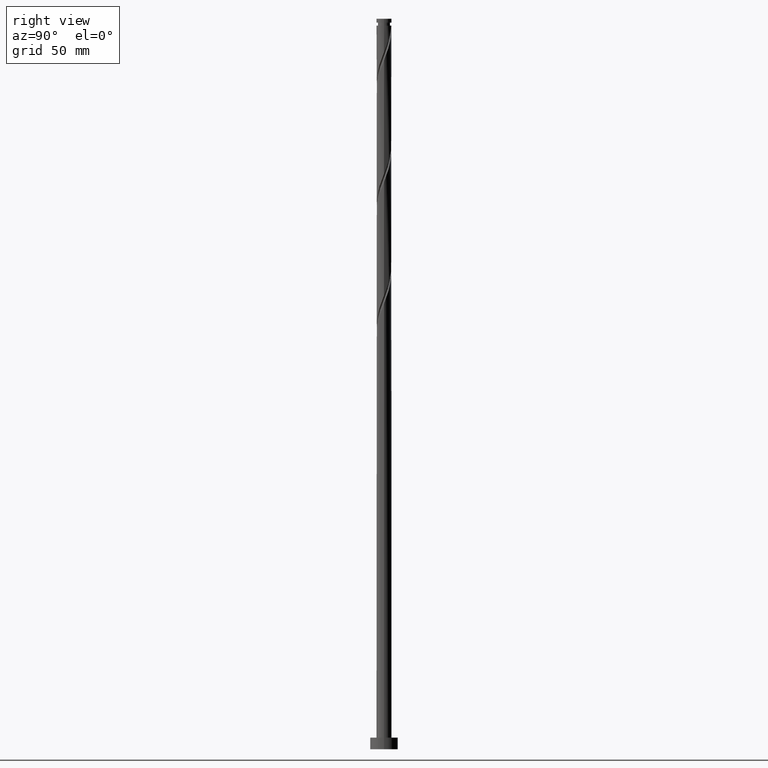
[diagram: clean part render]
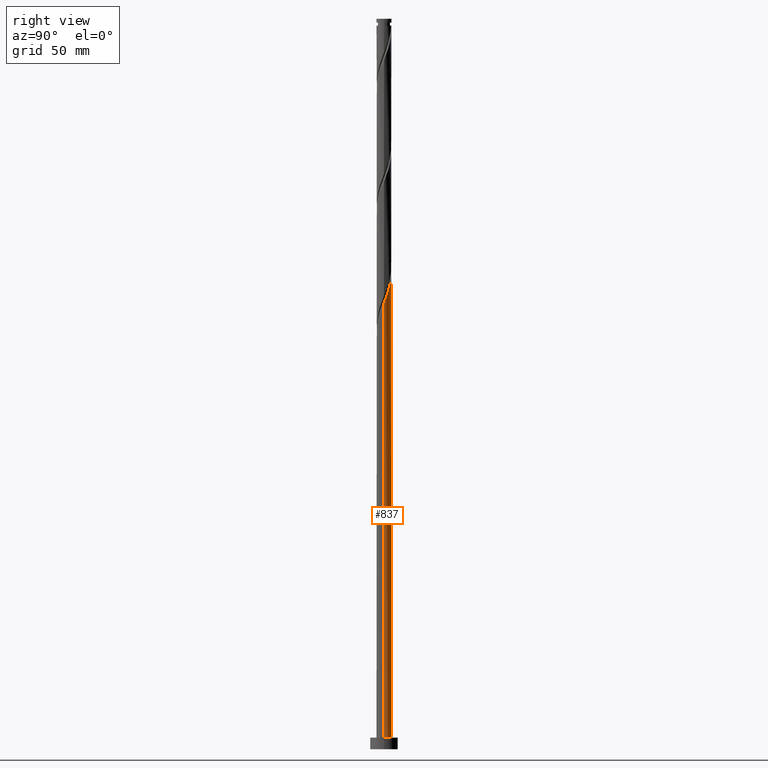
[diagram: same view with one face highlighted and labeled with its STEP entity id]
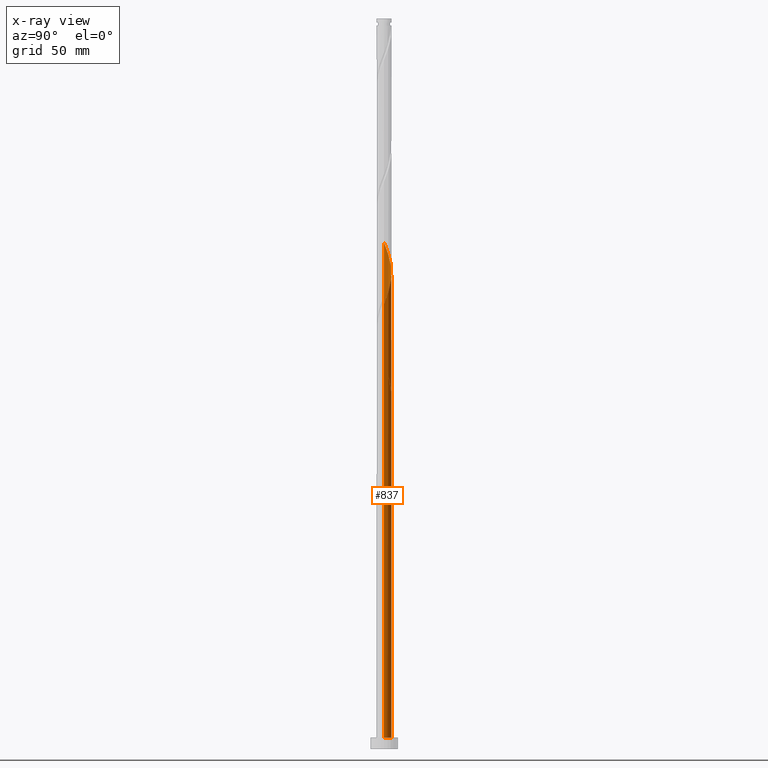
[diagram: x-ray of the same camera — body ghosted, the highlighted face saturated]
A machine part, right view. The second image highlights one B-rep face of the part: STEP entity #837.
The next image is the same camera in x-ray: the body ghosted, the highlighted face saturated — about 0% of this face is hidden behind the body in this view.
In plain terms, the highlighted cylindrical surface (edge-blend (fillet) strip) has radius 3.25 mm, axis along (-0, -0, -1).
Its self-contained STEP definition (entity closure, byte-faithful):
#42 = DIRECTION ( 'NONE',  ( -1.000000000000000000, 0.000000000000000000, 0.000000000000000000 ) ) ;
#47 = CARTESIAN_POINT ( 'NONE',  ( 0.7992254509778199401, 3.150196609500639955, 203.2905349265506914 ) ) ;
#53 = LINE ( 'NONE', #650, #691 ) ;
#57 = CARTESIAN_POINT ( 'NONE',  ( -3.249058997255960257, 0.07820250859228415619, 218.2905349265507198 ) ) ;
#66 = CARTESIAN_POINT ( 'NONE',  ( -3.250000000000000888, -6.731523858208234460E-15, 169.3400520044567941 ) ) ;
#67 = ORIENTED_EDGE ( 'NONE', *, *, #1355, .F. ) ;
#121 = ORIENTED_EDGE ( 'NONE', *, *, #1755, .T. ) ;
#152 = CARTESIAN_POINT ( 'NONE',  ( -0.07820250859228344842, 3.249058997255956260, 156.4155349265507482 ) ) ;
#162 = CARTESIAN_POINT ( 'NONE',  ( -3.250000000000004441, -1.559743332999460153E-15, 218.4910178486446739 ) ) ;
#166 = CARTESIAN_POINT ( 'NONE',  ( 3.185000000000003162, 0.6467418341193053033, 193.9155349265507766 ) ) ;
#203 = CARTESIAN_POINT ( 'NONE',  ( 3.250000000000004441, 1.111970127353682058E-15, 192.2410178486446455 ) ) ;
#214 = CARTESIAN_POINT ( 'NONE',  ( 2.961231803342264879, 1.339255840709439704, 195.7905349265506914 ) ) ;
#266 = DIRECTION ( 'NONE',  ( 1.000000000000000000, 0.000000000000000000, 0.000000000000000000 ) ) ;
#281 = CARTESIAN_POINT ( 'NONE',  ( -2.810333910491133125, 1.672906533717719357, 164.8530349265507198 ) ) ;
#290 = EDGE_CURVE ( 'NONE', #395, #1917, #583, .T. ) ;
#316 = CARTESIAN_POINT ( 'NONE',  ( -1.339255840709440593, 2.961231803342264879, 208.9155349265507198 ) ) ;
#348 = VERTEX_POINT ( 'NONE', #203 ) ;
#352 = CARTESIAN_POINT ( 'NONE',  ( -1.672906533717721356, 2.810333910491137122, 209.8530349265507766 ) ) ;
#377 = EDGE_CURVE ( 'NONE', #348, #582, #607, .T. ) ;
#395 = VERTEX_POINT ( 'NONE', #1348 ) ;
#441 = CARTESIAN_POINT ( 'NONE',  ( -1.480171891976476806, 2.893370209669474225, 160.1655349265507482 ) ) ;
#446 = CARTESIAN_POINT ( 'NONE',  ( -0.6467418341193051923, 3.185000000000003606, 154.5405349265506914 ) ) ;
#452 = CARTESIAN_POINT ( 'NONE',  ( -3.185000000000000497, 0.6467418341193057474, 167.6655349265507198 ) ) ;
#455 = CARTESIAN_POINT ( 'NONE',  ( -2.491458145863657769, 2.086896333651878432, 160.1655349265507482 ) ) ;
#456 = CARTESIAN_POINT ( 'NONE',  ( -3.250000000000004441, -1.559743332999460153E-15, 218.4910178486446739 ) ) ;
#479 = CARTESIAN_POINT ( 'NONE',  ( -0.6467418341193051923, 3.185000000000003606, 154.5405349265506914 ) ) ;
#496 = CARTESIAN_POINT ( 'NONE',  ( 2.588975079037777682, 1.964613967201029432, 197.6655349265506629 ) ) ;
#514 = DIRECTION ( 'NONE',  ( -0.000000000000000000, -0.000000000000000000, -1.000000000000000000 ) ) ;
#555 = ORIENTED_EDGE ( 'NONE', *, *, #919, .T. ) ;
#578 = CARTESIAN_POINT ( 'NONE',  ( -3.112129696193387307, 1.005605147701159385, 166.7280349265507198 ) ) ;
#582 = VERTEX_POINT ( 'NONE', #162 ) ;
#583 = LINE ( 'NONE', #1615, #1902 ) ;
#588 = CARTESIAN_POINT ( 'NONE',  ( -2.961231803342261326, 1.339255840709439482, 165.7905349265507198 ) ) ;
#606 = CARTESIAN_POINT ( 'NONE',  ( -3.250000000000000444, 0.000000000000000000, 5.000000000000000000 ) ) ;
#607 =( BOUNDED_CURVE ( )  B_SPLINE_CURVE ( 2, ( #1076, #1676, #166, #1365, #214, #785, #496, #1043, #1377, #773, #1662, #921, #47, #644, #897, #1088, #1063, #1691, #316, #352, #941, #1793, #1530, #798, #1389, #1486, #1209, #1801, #57, #1218, #456 ),
 .UNSPECIFIED., .F., .T. ) 
 B_SPLINE_CURVE_WITH_KNOTS ( ( 3, 2, 2, 2, 2, 2, 2, 2, 2, 2, 2, 2, 2, 2, 2, 3 ),
 ( 0.1795303401299218060, 0.1875000000000000000, 0.1964285714285713969, 0.2053571428571429047, 0.2142857142857143016, 0.2232142857142856984, 0.2321428571428570953, 0.2410714285714286031, 0.2500000000000000000, 0.2589285714285713969, 0.2678571428571429047, 0.2767857142857143016, 0.2857142857142856984, 0.2946428571428570953, 0.3035714285714286031, 0.3045303401299219725 ),
 .UNSPECIFIED. ) 
 CURVE ( )  GEOMETRIC_REPRESENTATION_ITEM ( )  RATIONAL_B_SPLINE_CURVE ( ( 0.9079949616362172904, 0.9039886423360798950, 0.9090909090909469192, 0.9033747362666216807, 0.9090909090909469192, 0.9033747362666216807, 0.9090909090909469192, 0.9033747362666216807, 0.9090909090909469192, 0.9033747362666216807, 0.9090909090909469192, 0.9033747362666216807, 0.9090909090909469192, 0.9033747362666216807, 0.9090909090909469192, 0.9033747362666216807, 0.9090909090909469192, 0.9033747362666216807, 0.9090909090909469192, 0.9033747362666216807, 0.9090909090909469192, 0.9033747362666216807, 0.9090909090909469192, 0.9033747362666216807, 0.9090909090909469192, 0.9033747362666216807, 0.9090909090909469192, 0.9033747362666216807, 0.9090909090909469192, 0.9084770030214888159, 0.9079949616362170683 ) ) 
 REPRESENTATION_ITEM ( '' )  );
#608 = CARTESIAN_POINT ( 'NONE',  ( -3.060145528295977524, 1.154167364233618764, 162.9780349265507198 ) ) ;
#640 = CARTESIAN_POINT ( 'NONE',  ( 3.250000000000000444, 3.980102097228898231E-16, 5.000000000000000000 ) ) ;
#644 = CARTESIAN_POINT ( 'NONE',  ( 0.4442835377220207826, 3.240247690705303718, 204.2280349265507482 ) ) ;
#650 = CARTESIAN_POINT ( 'NONE',  ( -3.250000000000000444, 0.000000000000000000, 315.0000000000000000 ) ) ;
#663 =( BOUNDED_CURVE ( )  B_SPLINE_CURVE ( 2, ( #446, #1160, #1637, #1042, #1799, #883, #455, #1034, #1023, #608, #1455, #726, #1466, #1048, #1922 ),
 .UNSPECIFIED., .F., .T. ) 
 B_SPLINE_CURVE_WITH_KNOTS ( ( 3, 2, 2, 2, 2, 2, 2, 3 ),
 ( 0.000000000000000000, 0.008928571428571396851, 0.01785714285714290472, 0.02678571428571430504, 0.03571428571428569843, 0.04464285714285709528, 0.05357142857142861009, 0.05453034012992192398 ),
 .UNSPECIFIED. ) 
 CURVE ( )  GEOMETRIC_REPRESENTATION_ITEM ( )  RATIONAL_B_SPLINE_CURVE ( ( 0.9090909090909469192, 0.9033747362666216807, 0.9090909090909469192, 0.9033747362666216807, 0.9090909090909469192, 0.9033747362666216807, 0.9090909090909469192, 0.9033747362666216807, 0.9090909090909469192, 0.9033747362666216807, 0.9090909090909469192, 0.9033747362666216807, 0.9090909090909469192, 0.9084770030214887049, 0.9079949616362170683 ) ) 
 REPRESENTATION_ITEM ( '' )  );
#691 = VECTOR ( 'NONE', #1235, 1000.000000000000000 ) ;
#717 =( BOUNDED_CURVE ( )  B_SPLINE_CURVE ( 2, ( #1788, #1302, #452, #578, #588, #281, #1040, #1766, #1775, #1452, #441, #1472, #1032, #1599, #152, #1633, #1177 ),
 .UNSPECIFIED., .F., .T. ) 
 B_SPLINE_CURVE_WITH_KNOTS ( ( 3, 2, 2, 2, 2, 2, 2, 2, 3 ),
 ( 0.9295303401299219725, 0.9375000000000000000, 0.9464285714285713969, 0.9553571428571429047, 0.9642857142857143016, 0.9732142857142856984, 0.9821428571428570953, 0.9910714285714286031, 1.000000000000000000 ),
 .UNSPECIFIED. ) 
 CURVE ( )  GEOMETRIC_REPRESENTATION_ITEM ( )  RATIONAL_B_SPLINE_CURVE ( ( 0.9079949616362118503, 0.9039886423360746770, 0.9090909090909415902, 0.9033747362666164626, 0.9090909090909415902, 0.9033747362666164626, 0.9090909090909415902, 0.9033747362666164626, 0.9090909090909415902, 0.9033747362666164626, 0.9090909090909415902, 0.9033747362666164626, 0.9090909090909415902, 0.9033747362666164626, 0.9090909090909415902, 0.9033747362666164626, 0.9090909090909415902 ) ) 
 REPRESENTATION_ITEM ( '' )  );
#726 = CARTESIAN_POINT ( 'NONE',  ( -3.240247690705304162, 0.4442835377220201720, 164.8530349265507482 ) ) ;
#772 = VERTEX_POINT ( 'NONE', #479 ) ;
#773 = CARTESIAN_POINT ( 'NONE',  ( 1.806176419719340842, 2.726594891042978475, 200.4780349265507198 ) ) ;
#785 = CARTESIAN_POINT ( 'NONE',  ( 2.810333910491137566, 1.672906533717720690, 196.7280349265507766 ) ) ;
#798 = CARTESIAN_POINT ( 'NONE',  ( -2.726594891042978919, 1.806176419719340398, 213.6030349265507198 ) ) ;
#837 = ADVANCED_FACE ( 'NONE', ( #1372 ), #1699, .T. ) ;
#850 = CARTESIAN_POINT ( 'NONE',  ( 0.6467418341193063025, 3.185000000000000053, 154.5405349265506914 ) ) ;
#865 = EDGE_LOOP ( 'NONE', ( #1136, #555, #121, #1589, #67, #1866, #1504, #1170 ) ) ;
#883 = CARTESIAN_POINT ( 'NONE',  ( -2.256321400684338840, 2.367616247584416467, 159.2280349265507482 ) ) ;
#886 = EDGE_CURVE ( 'NONE', #582, #1572, #53, .T. ) ;
#897 = CARTESIAN_POINT ( 'NONE',  ( 0.07820250859228491946, 3.249058997255960257, 205.1655349265506914 ) ) ;
#899 = CARTESIAN_POINT ( 'NONE',  ( 0.000000000000000000, 0.000000000000000000, 154.5405349265506914 ) ) ;
#903 = AXIS2_PLACEMENT_3D ( 'NONE', #1384, #514, #42 ) ;
#919 = EDGE_CURVE ( 'NONE', #348, #1617, #1682, .T. ) ;
#921 = CARTESIAN_POINT ( 'NONE',  ( 1.154167364233619653, 3.060145528295977524, 202.3530349265506914 ) ) ;
#932 = DIRECTION ( 'NONE',  ( -0.000000000000000000, -0.000000000000000000, -1.000000000000000000 ) ) ;
#941 = CARTESIAN_POINT ( 'NONE',  ( -1.964613967201029432, 2.588975079037776794, 210.7905349265506914 ) ) ;
#999 = CIRCLE ( 'NONE', #1560, 3.250000000000000444 ) ;
#1023 = CARTESIAN_POINT ( 'NONE',  ( -2.893370209669478221, 1.480171891976479248, 162.0405349265507482 ) ) ;
#1028 = CIRCLE ( 'NONE', #1904, 3.250000000000000444 ) ;
#1032 = CARTESIAN_POINT ( 'NONE',  ( -0.7992254509778180527, 3.150196609500638179, 158.2905349265507198 ) ) ;
#1034 = CARTESIAN_POINT ( 'NONE',  ( -2.726594891042978919, 1.806176419719340398, 161.1030349265506914 ) ) ;
#1040 = CARTESIAN_POINT ( 'NONE',  ( -2.588975079037772797, 1.964613967201028100, 163.9155349265506061 ) ) ;
#1042 = CARTESIAN_POINT ( 'NONE',  ( -1.672906533717721356, 2.810333910491137122, 157.3530349265507198 ) ) ;
#1043 = CARTESIAN_POINT ( 'NONE',  ( 2.367616247584416911, 2.256321400684337508, 198.6030349265508050 ) ) ;
#1048 = CARTESIAN_POINT ( 'NONE',  ( -3.250000000000004885, 0.03910691579077399394, 165.8906551604195272 ) ) ;
#1053 = CARTESIAN_POINT ( 'NONE',  ( 3.250000000000000444, 3.980102097228898231E-16, 315.0000000000000000 ) ) ;
#1063 = CARTESIAN_POINT ( 'NONE',  ( -0.6467418341193050813, 3.185000000000003162, 207.0405349265506629 ) ) ;
#1076 = CARTESIAN_POINT ( 'NONE',  ( 3.250000000000004441, 1.111970127353682058E-15, 192.2410178486446739 ) ) ;
#1088 = CARTESIAN_POINT ( 'NONE',  ( -0.2878785205374510547, 3.257870303806616352, 206.1030349265507198 ) ) ;
#1136 = ORIENTED_EDGE ( 'NONE', *, *, #377, .F. ) ;
#1141 = EDGE_CURVE ( 'NONE', #772, #1279, #1028, .T. ) ;
#1160 = CARTESIAN_POINT ( 'NONE',  ( -1.005605147701160051, 3.112129696193391748, 155.4780349265507198 ) ) ;
#1170 = ORIENTED_EDGE ( 'NONE', *, *, #886, .F. ) ;
#1177 = CARTESIAN_POINT ( 'NONE',  ( 0.6467418341193063025, 3.185000000000000053, 154.5405349265506914 ) ) ;
#1209 = CARTESIAN_POINT ( 'NONE',  ( -3.150196609500640399, 0.7992254509778191629, 216.4155349265506345 ) ) ;
#1218 = CARTESIAN_POINT ( 'NONE',  ( -3.250000000000004885, 0.03910691579077203717, 218.3906551604195840 ) ) ;
#1235 = DIRECTION ( 'NONE',  ( -0.000000000000000000, -0.000000000000000000, -1.000000000000000000 ) ) ;
#1279 = VERTEX_POINT ( 'NONE', #850 ) ;
#1293 = DIRECTION ( 'NONE',  ( 0.000000000000000000, 0.000000000000000000, 1.000000000000000000 ) ) ;
#1302 = CARTESIAN_POINT ( 'NONE',  ( -3.250000000000002220, 0.3266372899592421275, 168.5017809254932217 ) ) ;
#1348 = CARTESIAN_POINT ( 'NONE',  ( -3.250000000000004441, -1.559743332999460153E-15, 165.9910178486446171 ) ) ;
#1355 = EDGE_CURVE ( 'NONE', #772, #395, #663, .T. ) ;
#1365 = CARTESIAN_POINT ( 'NONE',  ( 3.112129696193391748, 1.005605147701159607, 194.8530349265507198 ) ) ;
#1372 = FACE_OUTER_BOUND ( 'NONE', #865, .T. ) ;
#1377 = CARTESIAN_POINT ( 'NONE',  ( 2.086896333651878432, 2.491458145863658213, 199.5405349265507198 ) ) ;
#1384 = CARTESIAN_POINT ( 'NONE',  ( 0.000000000000000000, 0.000000000000000000, 315.0000000000000000 ) ) ;
#1389 = CARTESIAN_POINT ( 'NONE',  ( -2.893370209669478221, 1.480171891976479248, 214.5405349265506629 ) ) ;
#1403 = VECTOR ( 'NONE', #1656, 1000.000000000000000 ) ;
#1452 = CARTESIAN_POINT ( 'NONE',  ( -1.806176419719337733, 2.726594891042974922, 161.1030349265507198 ) ) ;
#1455 = CARTESIAN_POINT ( 'NONE',  ( -3.150196609500640399, 0.7992254509778191629, 163.9155349265507198 ) ) ;
#1466 = CARTESIAN_POINT ( 'NONE',  ( -3.249058997255960257, 0.07820250859228415619, 165.7905349265506914 ) ) ;
#1472 = CARTESIAN_POINT ( 'NONE',  ( -1.154167364233616322, 3.060145528295973971, 159.2280349265506914 ) ) ;
#1486 = CARTESIAN_POINT ( 'NONE',  ( -3.060145528295977524, 1.154167364233618764, 215.4780349265507482 ) ) ;
#1487 = DIRECTION ( 'NONE',  ( 0.000000000000000000, -0.000000000000000000, -1.000000000000000000 ) ) ;
#1496 = DIRECTION ( 'NONE',  ( -1.000000000000000000, 0.000000000000000000, 0.000000000000000000 ) ) ;
#1504 = ORIENTED_EDGE ( 'NONE', *, *, #1897, .F. ) ;
#1530 = CARTESIAN_POINT ( 'NONE',  ( -2.491458145863657769, 2.086896333651878432, 212.6655349265507482 ) ) ;
#1559 = CARTESIAN_POINT ( 'NONE',  ( 0.000000000000000000, 0.000000000000000000, 5.000000000000000000 ) ) ;
#1560 = AXIS2_PLACEMENT_3D ( 'NONE', #1559, #1293, #266 ) ;
#1572 = VERTEX_POINT ( 'NONE', #66 ) ;
#1589 = ORIENTED_EDGE ( 'NONE', *, *, #290, .F. ) ;
#1599 = CARTESIAN_POINT ( 'NONE',  ( -0.4442835377220189508, 3.240247690705299721, 157.3530349265506914 ) ) ;
#1615 = CARTESIAN_POINT ( 'NONE',  ( -3.250000000000000444, 0.000000000000000000, 315.0000000000000000 ) ) ;
#1617 = VERTEX_POINT ( 'NONE', #640 ) ;
#1633 = CARTESIAN_POINT ( 'NONE',  ( 0.2878785205374518874, 3.257870303806612799, 155.4780349265506914 ) ) ;
#1637 = CARTESIAN_POINT ( 'NONE',  ( -1.339255840709440593, 2.961231803342264879, 156.4155349265507198 ) ) ;
#1656 = DIRECTION ( 'NONE',  ( -0.000000000000000000, -0.000000000000000000, -1.000000000000000000 ) ) ;
#1662 = CARTESIAN_POINT ( 'NONE',  ( 1.480171891976479914, 2.893370209669477777, 201.4155349265506914 ) ) ;
#1676 = CARTESIAN_POINT ( 'NONE',  ( 3.250000000000007105, 0.3266372899592344670, 193.0792889276081610 ) ) ;
#1682 = LINE ( 'NONE', #1053, #1403 ) ;
#1691 = CARTESIAN_POINT ( 'NONE',  ( -1.005605147701160051, 3.112129696193391748, 207.9780349265506345 ) ) ;
#1699 = CYLINDRICAL_SURFACE ( 'NONE', #903, 3.250000000000000444 ) ;
#1755 = EDGE_CURVE ( 'NONE', #1617, #1917, #999, .T. ) ;
#1766 = CARTESIAN_POINT ( 'NONE',  ( -2.367616247584412470, 2.256321400684335732, 162.9780349265507198 ) ) ;
#1775 = CARTESIAN_POINT ( 'NONE',  ( -2.086896333651875324, 2.491458145863655549, 162.0405349265506914 ) ) ;
#1788 = CARTESIAN_POINT ( 'NONE',  ( -3.250000000000001332, -6.731523858208234460E-15, 169.3400520044567941 ) ) ;
#1793 = CARTESIAN_POINT ( 'NONE',  ( -2.256321400684338840, 2.367616247584416467, 211.7280349265507482 ) ) ;
#1799 = CARTESIAN_POINT ( 'NONE',  ( -1.964613967201029432, 2.588975079037776794, 158.2905349265507198 ) ) ;
#1801 = CARTESIAN_POINT ( 'NONE',  ( -3.240247690705304162, 0.4442835377220201720, 217.3530349265507198 ) ) ;
#1866 = ORIENTED_EDGE ( 'NONE', *, *, #1141, .T. ) ;
#1897 = EDGE_CURVE ( 'NONE', #1572, #1279, #717, .T. ) ;
#1902 = VECTOR ( 'NONE', #932, 1000.000000000000000 ) ;
#1904 = AXIS2_PLACEMENT_3D ( 'NONE', #899, #1487, #1496 ) ;
#1917 = VERTEX_POINT ( 'NONE', #606 ) ;
#1922 = CARTESIAN_POINT ( 'NONE',  ( -3.250000000000004441, -1.559743332999460153E-15, 165.9910178486446171 ) ) ;